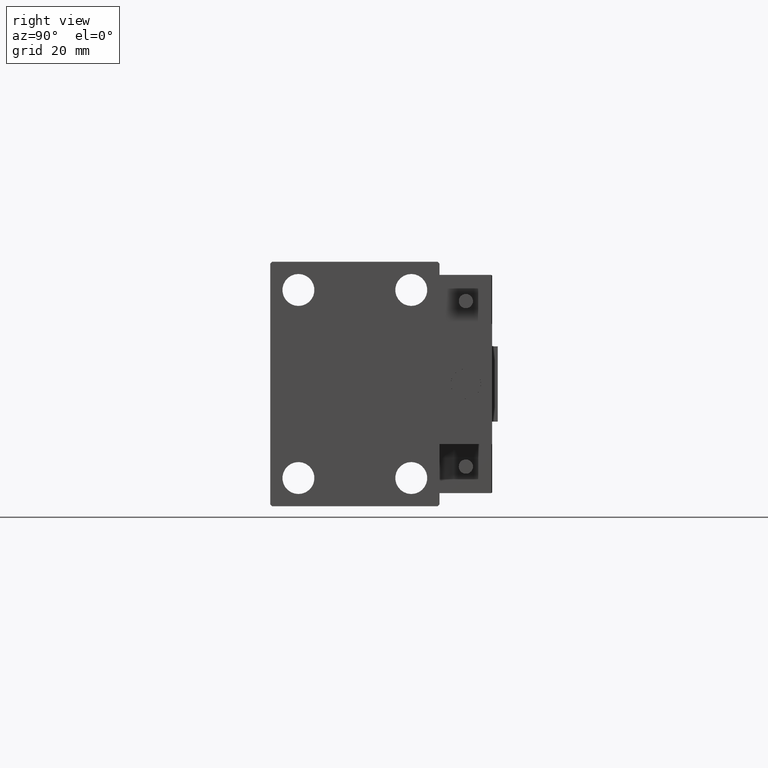
[diagram: clean part render]
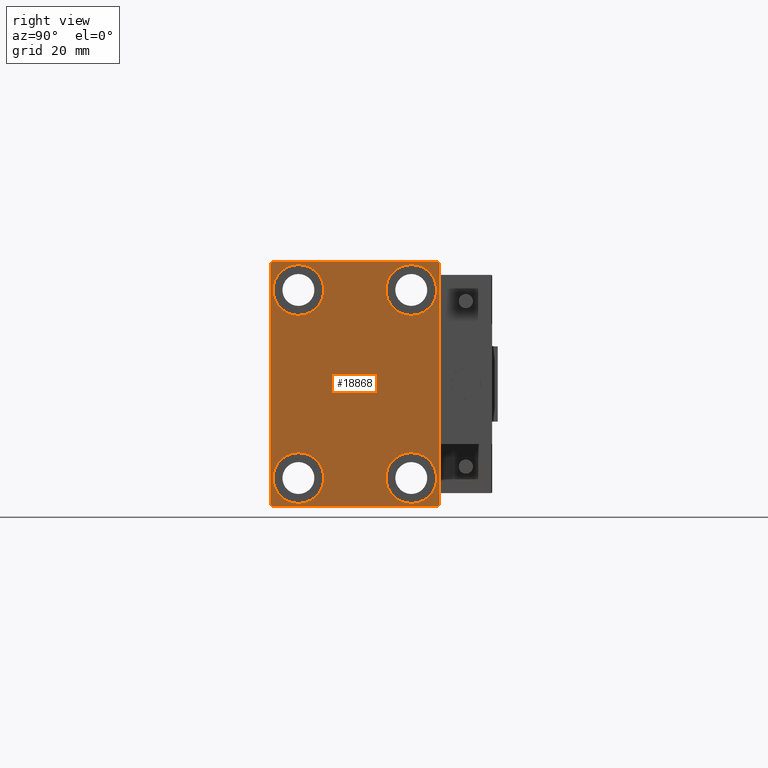
[diagram: same view with one face highlighted and labeled with its STEP entity id]
A machine part, right view. The second image highlights one B-rep face of the part: STEP entity #18868.
In plain terms, the highlighted planar face has unit normal (1, 0, 0).
Its self-contained STEP definition (entity closure, byte-faithful):
#519 = EDGE_LOOP ( 'NONE', ( #9075, #28476 ) ) ;
#814 = AXIS2_PLACEMENT_3D ( 'NONE', #42275, #6276, #51650 ) ;
#1047 = DIRECTION ( 'NONE',  ( 0.000000000000000000, 0.000000000000000000, -1.000000000000000000 ) ) ;
#1172 = CARTESIAN_POINT ( 'NONE',  ( 80.00000000000000000, 15.00000000000000355, 25.00000000000000000 ) ) ;
#1276 = VERTEX_POINT ( 'NONE', #40623 ) ;
#1662 = CARTESIAN_POINT ( 'NONE',  ( 80.00000000000000000, -22.00000000000000711, 32.49999999999999289 ) ) ;
#1958 = CARTESIAN_POINT ( 'NONE',  ( 80.00000000000000000, -22.50000000000000711, 32.00000000000000711 ) ) ;
#1977 = CARTESIAN_POINT ( 'NONE',  ( 80.00000000000000000, 14.99999999999999645, -18.25000000000000355 ) ) ;
#2084 = VERTEX_POINT ( 'NONE', #47296 ) ;
#2394 = CARTESIAN_POINT ( 'NONE',  ( 80.00000000000000000, -15.00000000000000355, -25.00000000000000000 ) ) ;
#2404 = AXIS2_PLACEMENT_3D ( 'NONE', #26405, #18769, #17998 ) ;
#2442 = CIRCLE ( 'NONE', #36870, 6.749999999999999112 ) ;
#2493 = FACE_BOUND ( 'NONE', #44368, .T. ) ;
#2528 = VERTEX_POINT ( 'NONE', #21625 ) ;
#2960 = DIRECTION ( 'NONE',  ( 0.000000000000000000, -1.067522139062650425E-16, 1.000000000000000000 ) ) ;
#2996 = FACE_BOUND ( 'NONE', #519, .T. ) ;
#3970 = EDGE_CURVE ( 'NONE', #1276, #7271, #35851, .T. ) ;
#4131 = ORIENTED_EDGE ( 'NONE', *, *, #34419, .T. ) ;
#4525 = VERTEX_POINT ( 'NONE', #1977 ) ;
#5455 = DIRECTION ( 'NONE',  ( 0.000000000000000000, 0.000000000000000000, 1.000000000000000000 ) ) ;
#6214 = EDGE_CURVE ( 'NONE', #37472, #2084, #14092, .T. ) ;
#6276 = DIRECTION ( 'NONE',  ( -1.000000000000000000, -0.000000000000000000, -0.000000000000000000 ) ) ;
#6484 = VECTOR ( 'NONE', #39648, 1000.000000000000000 ) ;
#6704 = VERTEX_POINT ( 'NONE', #15000 ) ;
#6881 = CARTESIAN_POINT ( 'NONE',  ( 80.00000000000000000, -27.25000000000000711, -27.25000000000000711 ) ) ;
#6958 = LINE ( 'NONE', #34058, #37575 ) ;
#7271 = VERTEX_POINT ( 'NONE', #50055 ) ;
#7729 = DIRECTION ( 'NONE',  ( -1.000000000000000000, -0.000000000000000000, -0.000000000000000000 ) ) ;
#7760 = CARTESIAN_POINT ( 'NONE',  ( 80.00000000000000000, 22.49999999999999289, 32.00000000000002132 ) ) ;
#8062 = ORIENTED_EDGE ( 'NONE', *, *, #12097, .T. ) ;
#8785 = EDGE_CURVE ( 'NONE', #7271, #1276, #35215, .T. ) ;
#9075 = ORIENTED_EDGE ( 'NONE', *, *, #6214, .T. ) ;
#9914 = DIRECTION ( 'NONE',  ( -1.000000000000000000, -0.000000000000000000, -0.000000000000000000 ) ) ;
#10011 = DIRECTION ( 'NONE',  ( 0.000000000000000000, 0.000000000000000000, 1.000000000000000000 ) ) ;
#11102 = AXIS2_PLACEMENT_3D ( 'NONE', #38896, #29975, #10011 ) ;
#11745 = ORIENTED_EDGE ( 'NONE', *, *, #20400, .T. ) ;
#11747 = EDGE_CURVE ( 'NONE', #29616, #20335, #18726, .T. ) ;
#12097 = EDGE_CURVE ( 'NONE', #26053, #39553, #20785, .T. ) ;
#12406 = CIRCLE ( 'NONE', #24159, 6.749999999999999112 ) ;
#14021 = CIRCLE ( 'NONE', #43391, 6.749999999999999112 ) ;
#14092 = CIRCLE ( 'NONE', #34248, 6.749999999999999112 ) ;
#14842 = DIRECTION ( 'NONE',  ( 0.000000000000000000, 1.000000000000000000, 0.000000000000000000 ) ) ;
#15000 = CARTESIAN_POINT ( 'NONE',  ( 80.00000000000000000, 14.99999999999999645, -31.75000000000000000 ) ) ;
#15301 = EDGE_CURVE ( 'NONE', #52008, #43815, #51296, .T. ) ;
#15340 = CARTESIAN_POINT ( 'NONE',  ( 80.00000000000000000, -22.00000000000000711, -32.50000000000000711 ) ) ;
#15574 = EDGE_CURVE ( 'NONE', #42519, #44785, #52012, .T. ) ;
#16072 = EDGE_CURVE ( 'NONE', #2084, #37472, #14021, .T. ) ;
#16469 = ORIENTED_EDGE ( 'NONE', *, *, #3970, .T. ) ;
#16925 = EDGE_CURVE ( 'NONE', #43815, #2528, #6958, .T. ) ;
#17998 = DIRECTION ( 'NONE',  ( 0.000000000000000000, 0.000000000000000000, -1.000000000000000000 ) ) ;
#18418 = DIRECTION ( 'NONE',  ( 0.000000000000000000, 0.000000000000000000, 1.000000000000000000 ) ) ;
#18711 = DIRECTION ( 'NONE',  ( -0.000000000000000000, 0.7071067811865474617, -0.7071067811865474617 ) ) ;
#18726 = LINE ( 'NONE', #30031, #36116 ) ;
#18728 = VECTOR ( 'NONE', #1047, 1000.000000000000000 ) ;
#18769 = DIRECTION ( 'NONE',  ( 1.000000000000000000, 0.000000000000000000, 0.000000000000000000 ) ) ;
#18868 = ADVANCED_FACE ( 'NONE', ( #2493, #50835, #2996, #19018, #50335 ), #45857, .T. ) ;
#19018 = FACE_BOUND ( 'NONE', #39037, .T. ) ;
#19036 = ORIENTED_EDGE ( 'NONE', *, *, #36263, .T. ) ;
#19437 = EDGE_CURVE ( 'NONE', #6704, #4525, #2442, .T. ) ;
#19559 = CARTESIAN_POINT ( 'NONE',  ( 80.00000000000000000, 15.00000000000000355, 25.00000000000000000 ) ) ;
#20072 = DIRECTION ( 'NONE',  ( 0.000000000000000000, 0.000000000000000000, 1.000000000000000000 ) ) ;
#20209 = ORIENTED_EDGE ( 'NONE', *, *, #11747, .T. ) ;
#20335 = VERTEX_POINT ( 'NONE', #7760 ) ;
#20400 = EDGE_CURVE ( 'NONE', #44785, #32698, #32203, .T. ) ;
#20785 = CIRCLE ( 'NONE', #11102, 6.749999999999999112 ) ;
#21124 = CARTESIAN_POINT ( 'NONE',  ( 80.00000000000000000, -15.00000000000000355, -18.25000000000000355 ) ) ;
#21422 = CARTESIAN_POINT ( 'NONE',  ( 80.00000000000000000, 14.99999999999999645, -25.00000000000000000 ) ) ;
#21508 = CARTESIAN_POINT ( 'NONE',  ( 80.00000000000000000, 27.24999999999985079, 27.25000000000023093 ) ) ;
#21595 = VECTOR ( 'NONE', #18711, 1000.000000000000114 ) ;
#21625 = CARTESIAN_POINT ( 'NONE',  ( 80.00000000000000000, 21.99999999999998579, -32.50000000000000711 ) ) ;
#21671 = VECTOR ( 'NONE', #41893, 1000.000000000000114 ) ;
#22120 = VECTOR ( 'NONE', #27928, 1000.000000000000114 ) ;
#23723 = CARTESIAN_POINT ( 'NONE',  ( 80.00000000000000000, 27.25000000000000355, -27.25000000000000355 ) ) ;
#23964 = CARTESIAN_POINT ( 'NONE',  ( 80.00000000000000000, 15.00000000000000355, 18.25000000000000355 ) ) ;
#23993 = ORIENTED_EDGE ( 'NONE', *, *, #36719, .T. ) ;
#24159 = AXIS2_PLACEMENT_3D ( 'NONE', #21422, #25639, #29044 ) ;
#24436 = DIRECTION ( 'NONE',  ( -0.000000000000000000, -0.7071067811865525687, 0.7071067811865425767 ) ) ;
#25112 = CARTESIAN_POINT ( 'NONE',  ( 80.00000000000000000, -22.50000000000000711, -32.00000000000000711 ) ) ;
#25177 = CARTESIAN_POINT ( 'NONE',  ( 80.00000000000000000, -14.99999999999999645, 25.00000000000000000 ) ) ;
#25639 = DIRECTION ( 'NONE',  ( -1.000000000000000000, -0.000000000000000000, -0.000000000000000000 ) ) ;
#25669 = ORIENTED_EDGE ( 'NONE', *, *, #16925, .T. ) ;
#25864 = DIRECTION ( 'NONE',  ( -1.000000000000000000, -0.000000000000000000, -0.000000000000000000 ) ) ;
#26053 = VERTEX_POINT ( 'NONE', #27849 ) ;
#26405 = CARTESIAN_POINT ( 'NONE',  ( 80.00000000000000000, 0.000000000000000000, 0.000000000000000000 ) ) ;
#27159 = ORIENTED_EDGE ( 'NONE', *, *, #41126, .T. ) ;
#27849 = CARTESIAN_POINT ( 'NONE',  ( 80.00000000000000000, -15.00000000000000355, -31.75000000000000000 ) ) ;
#27928 = DIRECTION ( 'NONE',  ( -0.000000000000000000, 0.7071067811865474617, 0.7071067811865474617 ) ) ;
#28476 = ORIENTED_EDGE ( 'NONE', *, *, #16072, .T. ) ;
#28776 = CARTESIAN_POINT ( 'NONE',  ( 80.00000000000000000, 22.00000000000000711, 32.50000000000000000 ) ) ;
#29044 = DIRECTION ( 'NONE',  ( 0.000000000000000000, 0.000000000000000000, 1.000000000000000000 ) ) ;
#29374 = DIRECTION ( 'NONE',  ( 0.000000000000000000, 0.000000000000000000, 1.000000000000000000 ) ) ;
#29616 = VERTEX_POINT ( 'NONE', #32735 ) ;
#29975 = DIRECTION ( 'NONE',  ( -1.000000000000000000, -0.000000000000000000, -0.000000000000000000 ) ) ;
#30031 = CARTESIAN_POINT ( 'NONE',  ( 80.00000000000000000, 22.50000000000000000, -32.50000000000000711 ) ) ;
#32203 = LINE ( 'NONE', #48241, #21671 ) ;
#32698 = VERTEX_POINT ( 'NONE', #1958 ) ;
#32735 = CARTESIAN_POINT ( 'NONE',  ( 80.00000000000000000, 22.50000000000000000, -32.00000000000000711 ) ) ;
#33367 = LINE ( 'NONE', #33632, #18728 ) ;
#33632 = CARTESIAN_POINT ( 'NONE',  ( 80.00000000000000000, -22.50000000000000711, 32.49999999999999289 ) ) ;
#34058 = CARTESIAN_POINT ( 'NONE',  ( 80.00000000000000000, -22.50000000000000711, -32.50000000000000711 ) ) ;
#34108 = CARTESIAN_POINT ( 'NONE',  ( 80.00000000000000000, 14.99999999999999645, -25.00000000000000000 ) ) ;
#34176 = AXIS2_PLACEMENT_3D ( 'NONE', #25177, #49097, #5455 ) ;
#34243 = EDGE_CURVE ( 'NONE', #39553, #26053, #50562, .T. ) ;
#34248 = AXIS2_PLACEMENT_3D ( 'NONE', #1172, #25864, #37944 ) ;
#34419 = EDGE_CURVE ( 'NONE', #20335, #42519, #37538, .T. ) ;
#34962 = DIRECTION ( 'NONE',  ( -1.000000000000000000, -0.000000000000000000, -0.000000000000000000 ) ) ;
#35215 = CIRCLE ( 'NONE', #814, 6.749999999999999112 ) ;
#35851 = CIRCLE ( 'NONE', #34176, 6.749999999999999112 ) ;
#36116 = VECTOR ( 'NONE', #2960, 1000.000000000000000 ) ;
#36263 = EDGE_CURVE ( 'NONE', #2528, #29616, #51843, .T. ) ;
#36719 = EDGE_CURVE ( 'NONE', #32698, #52008, #33367, .T. ) ;
#36747 = CARTESIAN_POINT ( 'NONE',  ( 80.00000000000000000, 22.49999999999999289, 32.50000000000000000 ) ) ;
#36870 = AXIS2_PLACEMENT_3D ( 'NONE', #34108, #9914, #29374 ) ;
#37414 = ORIENTED_EDGE ( 'NONE', *, *, #34243, .T. ) ;
#37472 = VERTEX_POINT ( 'NONE', #23964 ) ;
#37538 = LINE ( 'NONE', #21508, #45517 ) ;
#37575 = VECTOR ( 'NONE', #14842, 1000.000000000000000 ) ;
#37670 = EDGE_LOOP ( 'NONE', ( #44577, #11745, #23993, #50049, #25669, #19036, #20209, #4131 ) ) ;
#37944 = DIRECTION ( 'NONE',  ( 0.000000000000000000, 0.000000000000000000, 1.000000000000000000 ) ) ;
#38797 = AXIS2_PLACEMENT_3D ( 'NONE', #2394, #34962, #18418 ) ;
#38896 = CARTESIAN_POINT ( 'NONE',  ( 80.00000000000000000, -15.00000000000000355, -25.00000000000000000 ) ) ;
#39037 = EDGE_LOOP ( 'NONE', ( #8062, #37414 ) ) ;
#39553 = VERTEX_POINT ( 'NONE', #21124 ) ;
#39648 = DIRECTION ( 'NONE',  ( 0.000000000000000000, -1.000000000000000000, -1.541976423090495387E-16 ) ) ;
#40623 = CARTESIAN_POINT ( 'NONE',  ( 80.00000000000000000, -14.99999999999999645, 31.75000000000000000 ) ) ;
#41126 = EDGE_CURVE ( 'NONE', #4525, #6704, #12406, .T. ) ;
#41893 = DIRECTION ( 'NONE',  ( 0.000000000000000000, -0.7071067811865474617, -0.7071067811865474617 ) ) ;
#42275 = CARTESIAN_POINT ( 'NONE',  ( 80.00000000000000000, -14.99999999999999645, 25.00000000000000000 ) ) ;
#42519 = VERTEX_POINT ( 'NONE', #28776 ) ;
#43391 = AXIS2_PLACEMENT_3D ( 'NONE', #19559, #7729, #20072 ) ;
#43815 = VERTEX_POINT ( 'NONE', #15340 ) ;
#44368 = EDGE_LOOP ( 'NONE', ( #51394, #27159 ) ) ;
#44577 = ORIENTED_EDGE ( 'NONE', *, *, #15574, .T. ) ;
#44609 = EDGE_LOOP ( 'NONE', ( #51618, #16469 ) ) ;
#44785 = VERTEX_POINT ( 'NONE', #1662 ) ;
#45517 = VECTOR ( 'NONE', #24436, 999.9999999999998863 ) ;
#45857 = PLANE ( 'NONE',  #2404 ) ;
#47296 = CARTESIAN_POINT ( 'NONE',  ( 80.00000000000000000, 15.00000000000000355, 31.75000000000000000 ) ) ;
#48241 = CARTESIAN_POINT ( 'NONE',  ( 80.00000000000000000, -27.25000000000000711, 27.25000000000000711 ) ) ;
#49097 = DIRECTION ( 'NONE',  ( -1.000000000000000000, -0.000000000000000000, -0.000000000000000000 ) ) ;
#50049 = ORIENTED_EDGE ( 'NONE', *, *, #15301, .T. ) ;
#50055 = CARTESIAN_POINT ( 'NONE',  ( 80.00000000000000000, -14.99999999999999645, 18.25000000000000355 ) ) ;
#50335 = FACE_OUTER_BOUND ( 'NONE', #37670, .T. ) ;
#50562 = CIRCLE ( 'NONE', #38797, 6.749999999999999112 ) ;
#50835 = FACE_BOUND ( 'NONE', #44609, .T. ) ;
#51296 = LINE ( 'NONE', #6881, #21595 ) ;
#51394 = ORIENTED_EDGE ( 'NONE', *, *, #19437, .T. ) ;
#51618 = ORIENTED_EDGE ( 'NONE', *, *, #8785, .T. ) ;
#51650 = DIRECTION ( 'NONE',  ( 0.000000000000000000, 0.000000000000000000, 1.000000000000000000 ) ) ;
#51843 = LINE ( 'NONE', #23723, #22120 ) ;
#52008 = VERTEX_POINT ( 'NONE', #25112 ) ;
#52012 = LINE ( 'NONE', #36747, #6484 ) ;